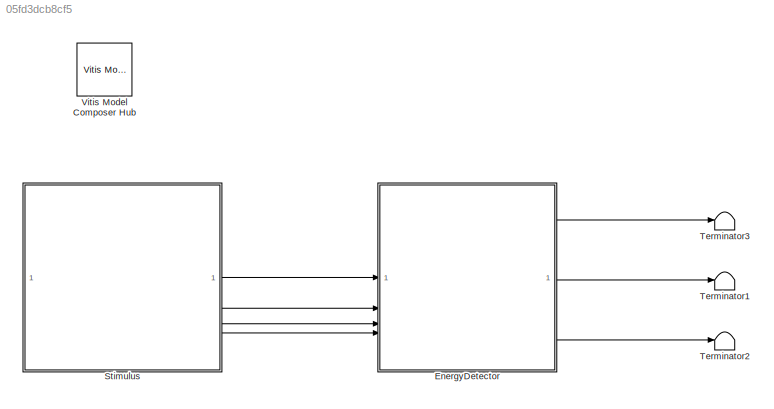
MODEL slx_05fd3dcb8cf5
KIND model
CONFIG AbsTol = auto
CONFIG EnableMultiTasking = off
CONFIG FixedStep = auto
CONFIG MaxStep = auto
CONFIG MinStep = auto
CONFIG RelTol = 1e-3
CONFIG SampleTimeConstraint = Unconstrained
CONFIG SolverName = VariableStepAuto
CONFIG StartTime = 0.0
CONFIG StopTime = 3000/fs
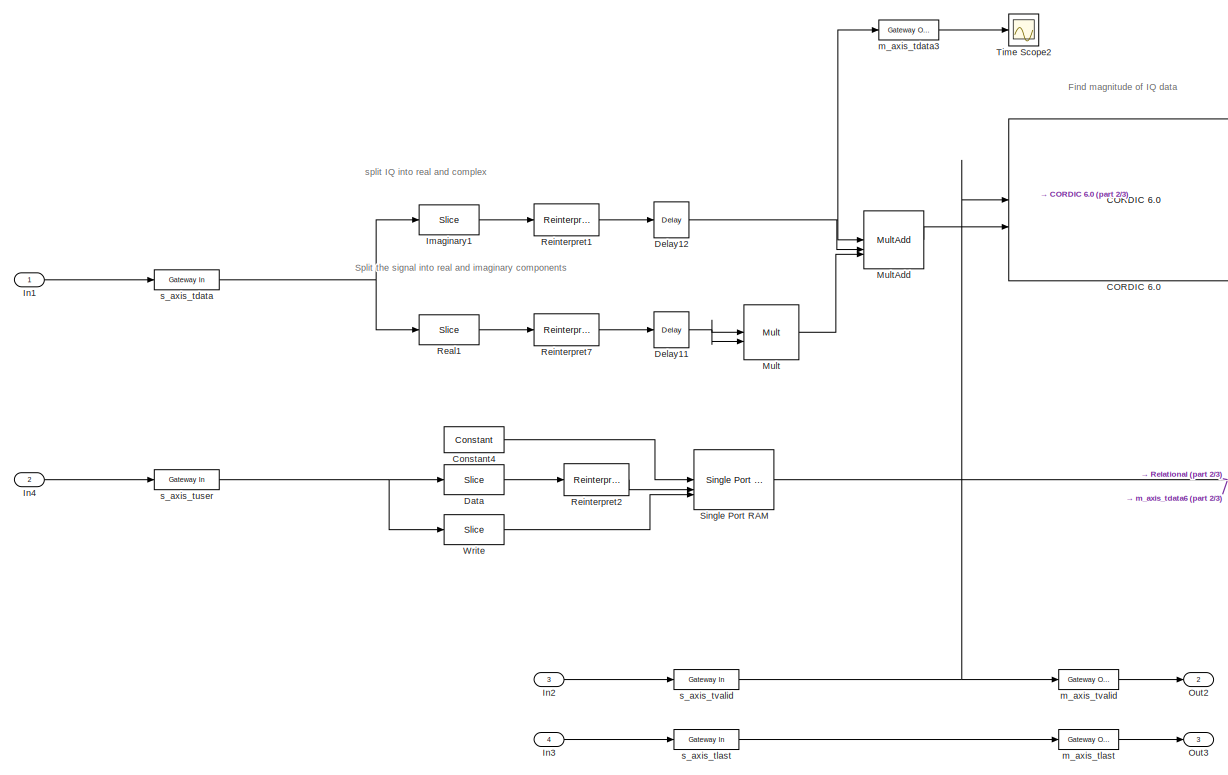
[diagram: EnergyDetector - part 1/3, left side, full height]
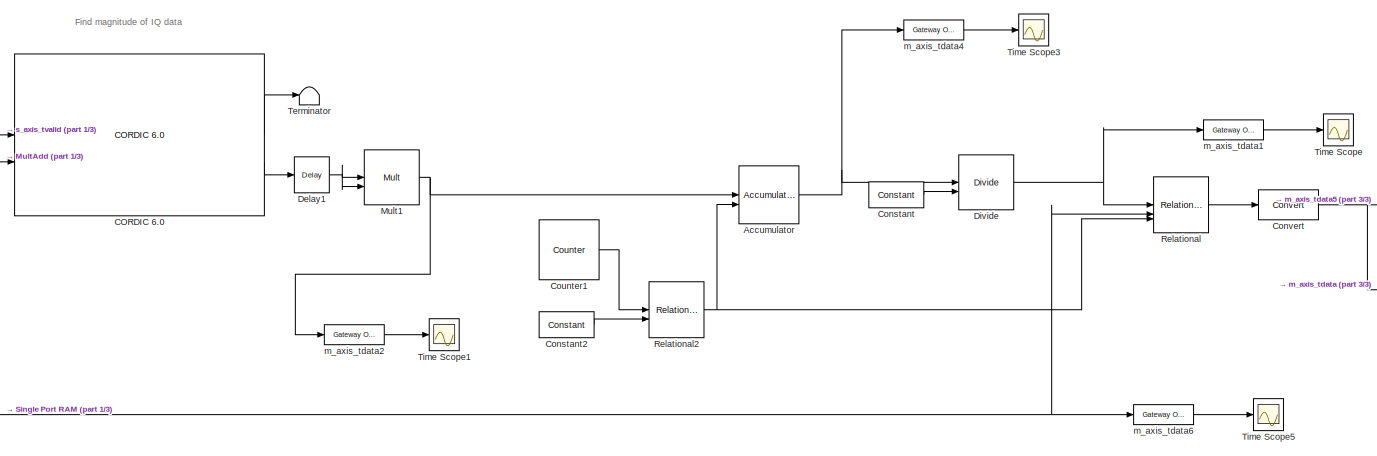
[diagram: EnergyDetector - part 2/3, central region]
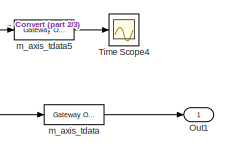
[diagram: EnergyDetector - part 3/3, middle right region]
BLOCK [SubSystem] EnergyDetector
BLOCK [Reference] EnergyDetector/Accumulator  REF=hdlBasic/Accumulator
  SourceBlock = hdlBasic/Accumulator
  SourceType = Accumulator Block
BLOCK [Reference] EnergyDetector/CORDIC 6.0  REF=hdlDSPIP/CORDIC 6.0 
  SourceBlock = hdlDSPIP/CORDIC 6.0
  SourceType = CORDIC 6.0 Block
BLOCK [Reference] EnergyDetector/Constant  REF=hdlBasic/Constant
  SourceBlock = hdlBasic/Constant
  SourceType = Constant Block Block
BLOCK [Reference] EnergyDetector/Constant2  REF=hdlBasic/Constant
  SourceBlock = hdlBasic/Constant
  SourceType = Constant Block Block
BLOCK [Reference] EnergyDetector/Constant4  REF=hdlBasic/Constant
  NameLocation = left
  SourceBlock = hdlBasic/Constant
  SourceType = Constant Block Block
BLOCK [Reference] EnergyDetector/Convert  REF=hdlBasic/Convert
  SourceBlock = hdlBasic/Convert
  SourceType = Type Converter Block
BLOCK [Reference] EnergyDetector/Counter1  REF=hdlBasic/Counter
  SourceBlock = hdlBasic/Counter
  SourceType = Counter Block
BLOCK [Reference] EnergyDetector/Data  REF=hdlBasic/Slice
  SourceBlock = hdlBasic/Slice
  SourceType = Bit Slice Extractor Block
BLOCK [Reference] EnergyDetector/Delay1  REF=hdlBasic/Delay
  SourceBlock = hdlBasic/Delay
  SourceType = Delay Block
BLOCK [Reference] EnergyDetector/Delay11  REF=hdlBasic/Delay
  SourceBlock = hdlBasic/Delay
  SourceType = Delay Block
BLOCK [Reference] EnergyDetector/Delay12  REF=hdlBasic/Delay
  NameLocation = top
  SourceBlock = hdlBasic/Delay
  SourceType = Delay Block
BLOCK [Reference] EnergyDetector/Divide  REF=hdlBasic/Divide
  SourceBlock = hdlBasic/Divide
  SourceType = Divider Block
BLOCK [Reference] EnergyDetector/Imaginary1  REF=hdlBasic/Slice
  SourceBlock = hdlBasic/Slice
  SourceType = Bit Slice Extractor Block
BLOCK [Inport] EnergyDetector/In1
BLOCK [Inport] EnergyDetector/In2
  Port = 3
BLOCK [Inport] EnergyDetector/In3
  Port = 4
BLOCK [Inport] EnergyDetector/In4
  Port = 2
BLOCK [Reference] EnergyDetector/Mult  REF=hdlBasic/Mult
  SourceBlock = hdlBasic/Mult
  SourceType = Multiplier Block
BLOCK [Reference] EnergyDetector/Mult1  REF=hdlBasic/Mult
  SourceBlock = hdlBasic/Mult
  SourceType = Multiplier Block
BLOCK [Reference] EnergyDetector/MultAdd  REF=hdlBasic/MultAdd
  SourceBlock = hdlBasic/MultAdd
  SourceType = Multiply Adder Block
BLOCK [Outport] EnergyDetector/Out1
BLOCK [Outport] EnergyDetector/Out2
  Port = 2
BLOCK [Outport] EnergyDetector/Out3
  Port = 3
BLOCK [Reference] EnergyDetector/Real1  REF=hdlBasic/Slice
  SourceBlock = hdlBasic/Slice
  SourceType = Bit Slice Extractor Block
BLOCK [Reference] EnergyDetector/Reinterpret1  REF=hdlBasic/Reinterpret
  SourceBlock = hdlBasic/Reinterpret
  SourceType = Type Reinterpreter Block
BLOCK [Reference] EnergyDetector/Reinterpret2  REF=hdlBasic/Reinterpret
  SourceBlock = hdlBasic/Reinterpret
  SourceType = Type Reinterpreter Block
BLOCK [Reference] EnergyDetector/Reinterpret7  REF=hdlBasic/Reinterpret
  SourceBlock = hdlBasic/Reinterpret
  SourceType = Type Reinterpreter Block
BLOCK [Reference] EnergyDetector/Relational  REF=hdlBasic/Relational
  SourceBlock = hdlBasic/Relational
  SourceType = Arithmetic Relational Operator Block
BLOCK [Reference] EnergyDetector/Relational2  REF=hdlBasic/Relational
  SourceBlock = hdlBasic/Relational
  SourceType = Arithmetic Relational Operator Block
BLOCK [Reference] EnergyDetector/Single Port RAM  REF=hdlBasic/Single Port RAM
  SourceBlock = hdlBasic/Single Port RAM
  SourceType = Single Port Random Access Memory Block
BLOCK [Terminator] EnergyDetector/Terminator
BLOCK [Scope] EnergyDetector/Time Scope
  DefaultConfigurationName = spbscopes.TimeScopeBlockCfg
  Floating = off
  NumInputPorts = 1
  ScopeSpecificationString = spbscopes.TimeScopeBlockCfg('CurrentConfiguration', extmgr.ConfigurationSet(extmgr.Configuration('Core','General UI',true,'FigureColor',[0.156862745098039 0.156862745098039 0.156862745098039]),extmgr.Configuration('Core','Source UI',true),extmgr.Configuration('Sources','WiredSimulink',true,'DataLoggingVariableName','ScopeData1'),extmgr.Configuration('Visuals','Time Domain',true,'DisplayPropertyDef...<+1487ch>
  UserDataPersistent = on
BLOCK [Scope] EnergyDetector/Time Scope1
  DefaultConfigurationName = spbscopes.TimeScopeBlockCfg
  Floating = off
  NumInputPorts = 1
  ScopeSpecificationString = spbscopes.TimeScopeBlockCfg('CurrentConfiguration', extmgr.ConfigurationSet(extmgr.Configuration('Core','General UI',true,'FigureColor',[0.156862745098039 0.156862745098039 0.156862745098039]),extmgr.Configuration('Core','Source UI',true),extmgr.Configuration('Sources','WiredSimulink',true,'DataLoggingVariableName','ScopeData2'),extmgr.Configuration('Visuals','Time Domain',true,'DisplayPropertyDef...<+1468ch>
  UserDataPersistent = on
BLOCK [Scope] EnergyDetector/Time Scope2
  DefaultConfigurationName = spbscopes.TimeScopeBlockCfg
  Floating = off
  NumInputPorts = 1
  ScopeSpecificationString = spbscopes.TimeScopeBlockCfg('CurrentConfiguration', extmgr.ConfigurationSet(extmgr.Configuration('Core','General UI',true,'FigureColor',[0.156862745098039 0.156862745098039 0.156862745098039]),extmgr.Configuration('Core','Source UI',true),extmgr.Configuration('Sources','WiredSimulink',true,'DataLoggingVariableName','ScopeData3'),extmgr.Configuration('Visuals','Time Domain',true,'DisplayPropertyDef...<+1510ch>
  UserDataPersistent = on
BLOCK [Scope] EnergyDetector/Time Scope3
  DefaultConfigurationName = spbscopes.TimeScopeBlockCfg
  Floating = off
  NumInputPorts = 1
  ScopeSpecificationString = spbscopes.TimeScopeBlockCfg('CurrentConfiguration', extmgr.ConfigurationSet(extmgr.Configuration('Core','General UI',true,'FigureColor',[0.156862745098039 0.156862745098039 0.156862745098039]),extmgr.Configuration('Core','Source UI',true),extmgr.Configuration('Sources','WiredSimulink',true,'DataLoggingVariableName','ScopeData1'),extmgr.Configuration('Visuals','Time Domain',true,'DisplayPropertyDef...<+1518ch>
  UserDataPersistent = on
BLOCK [Scope] EnergyDetector/Time Scope4
  DefaultConfigurationName = spbscopes.TimeScopeBlockCfg
  Floating = off
  NumInputPorts = 1
  ScopeSpecificationString = spbscopes.TimeScopeBlockCfg('CurrentConfiguration', extmgr.ConfigurationSet(extmgr.Configuration('Core','General UI',true,'FigureColor',[0.156862745098039 0.156862745098039 0.156862745098039]),extmgr.Configuration('Core','Source UI',true),extmgr.Configuration('Sources','WiredSimulink',true,'DataLoggingVariableName','ScopeData2'),extmgr.Configuration('Visuals','Time Domain',true,'DisplayPropertyDef...<+1476ch>
  UserDataPersistent = on
BLOCK [Scope] EnergyDetector/Time Scope5
  DefaultConfigurationName = spbscopes.TimeScopeBlockCfg
  Floating = off
  NumInputPorts = 1
  ScopeSpecificationString = spbscopes.TimeScopeBlockCfg('CurrentConfiguration', extmgr.ConfigurationSet(extmgr.Configuration('Core','General UI',true,'FigureColor',[0.156862745098039 0.156862745098039 0.156862745098039]),extmgr.Configuration('Core','Source UI',true),extmgr.Configuration('Sources','WiredSimulink',true,'DataLoggingVariableName','ScopeData3'),extmgr.Configuration('Visuals','Time Domain',true,'DisplayPropertyDef...<+1488ch>
  UserDataPersistent = on
BLOCK [Reference] EnergyDetector/Write  REF=hdlBasic/Slice
  SourceBlock = hdlBasic/Slice
  SourceType = Bit Slice Extractor Block
BLOCK [Reference] EnergyDetector/m_axis_tdata  REF=hdlBasic/Gateway Out
  SourceBlock = hdlBasic/Gateway Out
  SourceType = Gateway Out Block
BLOCK [Reference] EnergyDetector/m_axis_tdata1  REF=hdlBasic/Gateway Out
  SourceBlock = hdlBasic/Gateway Out
  SourceType = Gateway Out Block
BLOCK [Reference] EnergyDetector/m_axis_tdata2  REF=hdlBasic/Gateway Out
  SourceBlock = hdlBasic/Gateway Out
  SourceType = Gateway Out Block
BLOCK [Reference] EnergyDetector/m_axis_tdata3  REF=hdlBasic/Gateway Out
  SourceBlock = hdlBasic/Gateway Out
  SourceType = Gateway Out Block
BLOCK [Reference] EnergyDetector/m_axis_tdata4  REF=hdlBasic/Gateway Out
  SourceBlock = hdlBasic/Gateway Out
  SourceType = Gateway Out Block
BLOCK [Reference] EnergyDetector/m_axis_tdata5  REF=hdlBasic/Gateway Out
  SourceBlock = hdlBasic/Gateway Out
  SourceType = Gateway Out Block
BLOCK [Reference] EnergyDetector/m_axis_tdata6  REF=hdlBasic/Gateway Out
  SourceBlock = hdlBasic/Gateway Out
  SourceType = Gateway Out Block
BLOCK [Reference] EnergyDetector/m_axis_tlast  REF=hdlBasic/Gateway Out
  SourceBlock = hdlBasic/Gateway Out
  SourceType = Gateway Out Block
BLOCK [Reference] EnergyDetector/m_axis_tvalid  REF=hdlBasic/Gateway Out
  SourceBlock = hdlBasic/Gateway Out
  SourceType = Gateway Out Block
BLOCK [Reference] EnergyDetector/s_axis_tdata  REF=hdlBasic/Gateway In
  SourceBlock = hdlBasic/Gateway In
  SourceType = Gateway In Block
BLOCK [Reference] EnergyDetector/s_axis_tlast  REF=hdlBasic/Gateway In
  SourceBlock = hdlBasic/Gateway In
  SourceType = Gateway In Block
BLOCK [Reference] EnergyDetector/s_axis_tuser  REF=hdlBasic/Gateway In
  SourceBlock = hdlBasic/Gateway In
  SourceType = Gateway In Block
BLOCK [Reference] EnergyDetector/s_axis_tvalid  REF=hdlBasic/Gateway In
  SourceBlock = hdlBasic/Gateway In
  SourceType = Gateway In Block
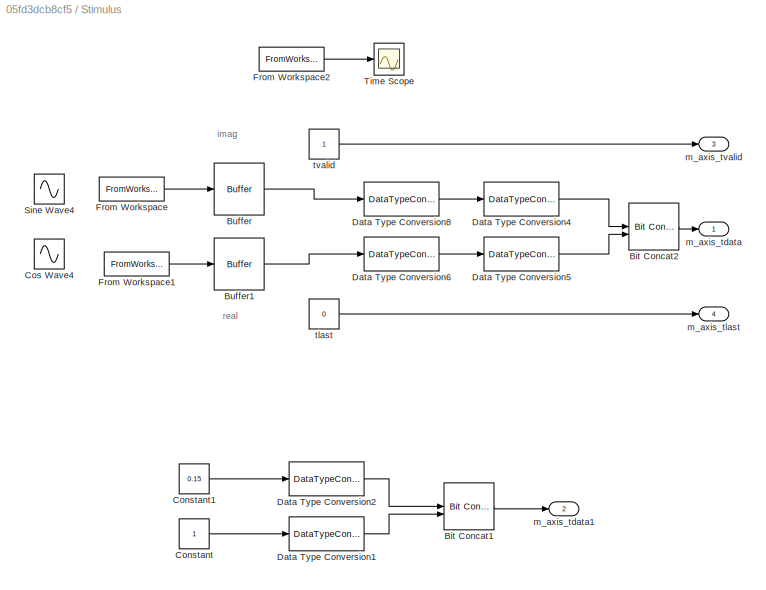
BLOCK [SubSystem] Stimulus
BLOCK [Reference] Stimulus/Bit Concat1  REF=hdlsllib/Logic and Bit
Operations/Bit Concat
  SourceBlock = hdlsllib/Logic and Bit\nOperations/Bit Concat
  SourceType = Bit Concat
BLOCK [Reference] Stimulus/Bit Concat2  REF=hdlsllib/Logic and Bit
Operations/Bit Concat
  SourceBlock = hdlsllib/Logic and Bit\nOperations/Bit Concat
  SourceType = Bit Concat
BLOCK [Buffer] Stimulus/Buffer
  N = 1
  OutputFrames = off
BLOCK [Buffer] Stimulus/Buffer1
  N = 1
  OutputFrames = off
BLOCK [Constant] Stimulus/Constant
  SampleTime = 1/fs
BLOCK [Constant] Stimulus/Constant1
  SampleTime = 1/fs
  Value = 0.15
BLOCK [Sin] Stimulus/Cos Wave4
  Amplitude = 0.4
  Commented = on
  Frequency = f*pi
  Phase = pi/2
  SampleTime = 1/fs
BLOCK [DataTypeConversion] Stimulus/Data Type Conversion1
  OutDataTypeStr = boolean
  RndMeth = Floor
BLOCK [DataTypeConversion] Stimulus/Data Type Conversion2
  OutDataTypeStr = fixdt(1,15,10)
  RndMeth = Floor
BLOCK [DataTypeConversion] Stimulus/Data Type Conversion4
  ConvertRealWorld = Stored Integer (SI)
  OutDataTypeStr = uint16
  RndMeth = Floor
  SaturateOnIntegerOverflow = off
BLOCK [DataTypeConversion] Stimulus/Data Type Conversion5
  ConvertRealWorld = Stored Integer (SI)
  OutDataTypeStr = uint16
  RndMeth = Floor
  SaturateOnIntegerOverflow = off
BLOCK [DataTypeConversion] Stimulus/Data Type Conversion6
  OutDataTypeStr = fixdt(1,16,15)
  RndMeth = Floor
BLOCK [DataTypeConversion] Stimulus/Data Type Conversion8
  OutDataTypeStr = fixdt(1,16,15)
  RndMeth = Floor
BLOCK [FromWorkspace] Stimulus/From Workspace
  OutDataTypeStr = double
  SampleTime = 1500/fs
  VariableName = Qh_noise
BLOCK [FromWorkspace] Stimulus/From Workspace1
  OutDataTypeStr = double
  SampleTime = 1500/fs
  VariableName = Ih_noise
BLOCK [FromWorkspace] Stimulus/From Workspace2
  Commented = on
  OutputAfterFinalValue = Setting to zero
  SampleTime = 1500/fs
  VariableName = Ih_noise
BLOCK [Sin] Stimulus/Sine Wave4
  Amplitude = 0.4
  Commented = on
  Frequency = f*pi
  SampleTime = 1/fs
BLOCK [Scope] Stimulus/Time Scope
  Commented = on
  DefaultConfigurationName = spbscopes.TimeScopeBlockCfg
  Floating = off
  NumInputPorts = 1
  ScopeSpecificationString = spbscopes.TimeScopeBlockCfg('CurrentConfiguration', extmgr.ConfigurationSet(extmgr.Configuration('Core','General UI',true,'FigureColor',[0.156862745098039 0.156862745098039 0.156862745098039]),extmgr.Configuration('Core','Source UI',true),extmgr.Configuration('Sources','WiredSimulink',true,'DataLoggingVariableName','ScopeData1'),extmgr.Configuration('Visuals','Time Domain',true,'DisplayPropertyDef...<+1544ch>
  UserDataPersistent = on
BLOCK [Outport] Stimulus/m_axis_tdata
BLOCK [Outport] Stimulus/m_axis_tdata1
  Port = 2
BLOCK [Outport] Stimulus/m_axis_tlast
  Port = 4
BLOCK [Outport] Stimulus/m_axis_tvalid
  Port = 3
BLOCK [Constant] Stimulus/tlast
  SampleTime = 1/fs
  Value = 0
BLOCK [Constant] Stimulus/tvalid
  SampleTime = 1/fs
BLOCK [Terminator] Terminator1
BLOCK [Terminator] Terminator2
BLOCK [Terminator] Terminator3
BLOCK [Reference] Vitis Model Composer Hub  REF=vmcUtilities/Vitis Model Composer Hub
  SourceBlock = vmcUtilities/Vitis Model Composer Hub
  SourceType = VMC Hub
  Tag = genX
  UserDataPersistent = on
ANNOTATION EnergyDetector: Find magnitude of IQ data
ANNOTATION EnergyDetector: Split the signal into real and imaginary components
ANNOTATION EnergyDetector: split IQ into real and complex
ANNOTATION Stimulus: imag
ANNOTATION Stimulus: real
NET EnergyDetector/Accumulator:1 -> EnergyDetector/Divide:1, EnergyDetector/m_axis_tdata4:1
LINE EnergyDetector/CORDIC 6.0:1 -> EnergyDetector/Terminator:1
LINE EnergyDetector/CORDIC 6.0:2 -> EnergyDetector/Delay1:1
LINE EnergyDetector/Constant2:1 -> EnergyDetector/Relational2:2
LINE EnergyDetector/Constant4:1 -> EnergyDetector/Single Port RAM:1
LINE EnergyDetector/Constant:1 -> EnergyDetector/Divide:2
NET EnergyDetector/Convert:1 -> EnergyDetector/m_axis_tdata5:1, EnergyDetector/m_axis_tdata:1
LINE EnergyDetector/Counter1:1 -> EnergyDetector/Relational2:1
LINE EnergyDetector/Data:1 -> EnergyDetector/Reinterpret2:1
NET EnergyDetector/Delay11:1 -> EnergyDetector/Mult:1, EnergyDetector/Mult:2
NET EnergyDetector/Delay12:1 -> EnergyDetector/MultAdd:1, EnergyDetector/MultAdd:2, EnergyDetector/m_axis_tdata3:1
NET EnergyDetector/Delay1:1 -> EnergyDetector/Mult1:1, EnergyDetector/Mult1:2
NET EnergyDetector/Divide:1 -> EnergyDetector/Relational:1, EnergyDetector/m_axis_tdata1:1
LINE EnergyDetector/Imaginary1:1 -> EnergyDetector/Reinterpret1:1
LINE EnergyDetector/In1:1 -> EnergyDetector/s_axis_tdata:1
LINE EnergyDetector/In2:1 -> EnergyDetector/s_axis_tvalid:1
LINE EnergyDetector/In3:1 -> EnergyDetector/s_axis_tlast:1
LINE EnergyDetector/In4:1 -> EnergyDetector/s_axis_tuser:1
NET EnergyDetector/Mult1:1 -> EnergyDetector/Accumulator:1, EnergyDetector/m_axis_tdata2:1
LINE EnergyDetector/Mult:1 -> EnergyDetector/MultAdd:3
LINE EnergyDetector/MultAdd:1 -> EnergyDetector/CORDIC 6.0:2
LINE EnergyDetector/Real1:1 -> EnergyDetector/Reinterpret7:1
LINE EnergyDetector/Reinterpret1:1 -> EnergyDetector/Delay12:1
LINE EnergyDetector/Reinterpret2:1 -> EnergyDetector/Single Port RAM:2
LINE EnergyDetector/Reinterpret7:1 -> EnergyDetector/Delay11:1
NET EnergyDetector/Relational2:1 -> EnergyDetector/Accumulator:2, EnergyDetector/Relational:3
LINE EnergyDetector/Relational:1 -> EnergyDetector/Convert:1
NET EnergyDetector/Single Port RAM:1 -> EnergyDetector/Relational:2, EnergyDetector/m_axis_tdata6:1
LINE EnergyDetector/Write:1 -> EnergyDetector/Single Port RAM:3
LINE EnergyDetector/m_axis_tdata1:1 -> EnergyDetector/Time Scope:1
LINE EnergyDetector/m_axis_tdata2:1 -> EnergyDetector/Time Scope1:1
LINE EnergyDetector/m_axis_tdata3:1 -> EnergyDetector/Time Scope2:1
LINE EnergyDetector/m_axis_tdata4:1 -> EnergyDetector/Time Scope3:1
LINE EnergyDetector/m_axis_tdata5:1 -> EnergyDetector/Time Scope4:1
LINE EnergyDetector/m_axis_tdata6:1 -> EnergyDetector/Time Scope5:1
LINE EnergyDetector/m_axis_tdata:1 -> EnergyDetector/Out1:1
LINE EnergyDetector/m_axis_tlast:1 -> EnergyDetector/Out3:1
LINE EnergyDetector/m_axis_tvalid:1 -> EnergyDetector/Out2:1
NET EnergyDetector/s_axis_tdata:1 -> EnergyDetector/Imaginary1:1, EnergyDetector/Real1:1
LINE EnergyDetector/s_axis_tlast:1 -> EnergyDetector/m_axis_tlast:1
NET EnergyDetector/s_axis_tuser:1 -> EnergyDetector/Data:1, EnergyDetector/Write:1
NET EnergyDetector/s_axis_tvalid:1 -> EnergyDetector/CORDIC 6.0:1, EnergyDetector/m_axis_tvalid:1
LINE EnergyDetector:1 -> Terminator3:1
LINE EnergyDetector:2 -> Terminator1:1
LINE EnergyDetector:3 -> Terminator2:1
LINE Stimulus/Bit Concat1:1 -> Stimulus/m_axis_tdata1:1
LINE Stimulus/Bit Concat2:1 -> Stimulus/m_axis_tdata:1
LINE Stimulus/Buffer1:1 -> Stimulus/Data Type Conversion6:1
LINE Stimulus/Buffer:1 -> Stimulus/Data Type Conversion8:1
LINE Stimulus/Constant1:1 -> Stimulus/Data Type Conversion2:1
LINE Stimulus/Constant:1 -> Stimulus/Data Type Conversion1:1
LINE Stimulus/Data Type Conversion1:1 -> Stimulus/Bit Concat1:2
LINE Stimulus/Data Type Conversion2:1 -> Stimulus/Bit Concat1:1
LINE Stimulus/Data Type Conversion4:1 -> Stimulus/Bit Concat2:1
LINE Stimulus/Data Type Conversion5:1 -> Stimulus/Bit Concat2:2
LINE Stimulus/Data Type Conversion6:1 -> Stimulus/Data Type Conversion5:1
LINE Stimulus/Data Type Conversion8:1 -> Stimulus/Data Type Conversion4:1
LINE Stimulus/From Workspace1:1 -> Stimulus/Buffer1:1
LINE Stimulus/From Workspace2:1 -> Stimulus/Time Scope:1
LINE Stimulus/From Workspace:1 -> Stimulus/Buffer:1
LINE Stimulus/tlast:1 -> Stimulus/m_axis_tlast:1
LINE Stimulus/tvalid:1 -> Stimulus/m_axis_tvalid:1
LINE Stimulus:1 -> EnergyDetector:1
LINE Stimulus:2 -> EnergyDetector:2
LINE Stimulus:3 -> EnergyDetector:3
LINE Stimulus:4 -> EnergyDetector:4
note: NET lines group one-source signal fan-out (src -> all destinations, sorted); 1:1 wires keep LINE
